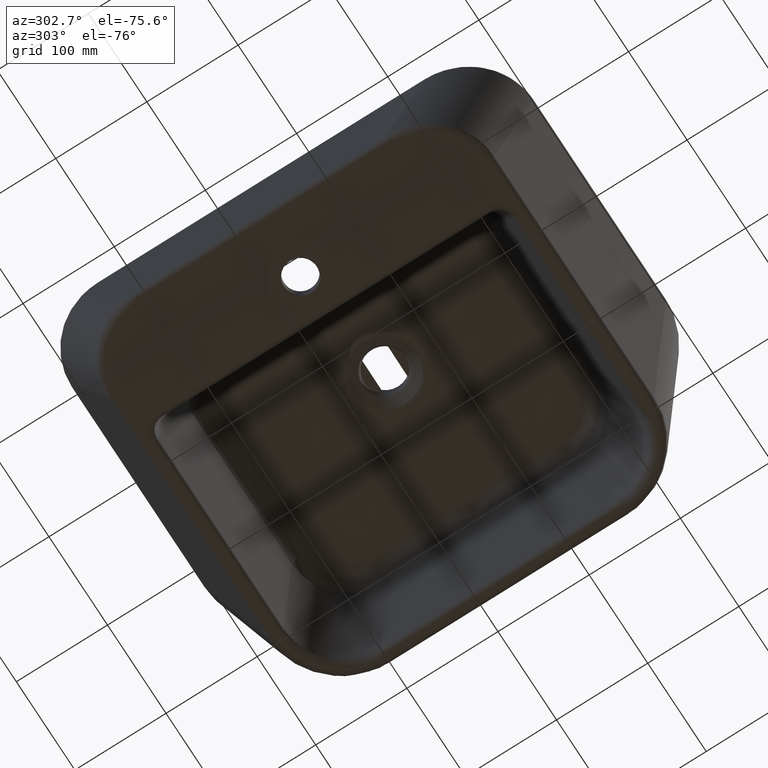
[diagram: clean part render]
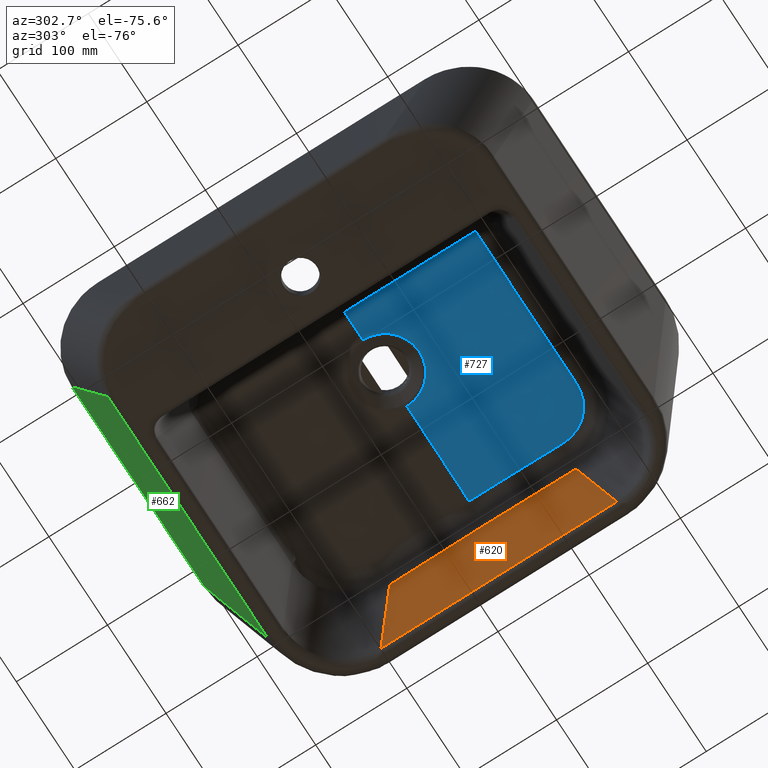
[diagram: same view with three faces highlighted in distinct colors, each labeled with its STEP entity id]
A machine part, auxiliary view with three faces highlighted in distinct colors.
Their STEP definitions:

[orange] entity #620 — the highlighted planar face has unit normal (0.9552, 0, 0.2961).
#265=PLANE('',#3220);
#480=LINE('',#4819,#556);
#481=LINE('',#4821,#557);
#482=LINE('',#4823,#558);
#556=VECTOR('',#3503,1.);
#557=VECTOR('',#3504,1.);
#558=VECTOR('',#3505,1.);
#620=ADVANCED_FACE('',(#858),#265,.F.);
#858=FACE_OUTER_BOUND('',#1069,.T.);
#1069=EDGE_LOOP('',(#1379,#1380,#1381,#1382,#1383));
#1379=ORIENTED_EDGE('',*,*,#2587,.F.);
#1380=ORIENTED_EDGE('',*,*,#2588,.F.);
#1381=ORIENTED_EDGE('',*,*,#2589,.F.);
#1382=ORIENTED_EDGE('',*,*,#2590,.T.);
#1383=ORIENTED_EDGE('',*,*,#2591,.T.);
#2312=VERTEX_POINT('',#4817);
#2313=VERTEX_POINT('',#4818);
#2314=VERTEX_POINT('',#4820);
#2315=VERTEX_POINT('',#4822);
#2316=VERTEX_POINT('',#4824);
#2587=EDGE_CURVE('',#2312,#2313,#3008,.T.);
#2588=EDGE_CURVE('',#2314,#2312,#480,.T.);
#2589=EDGE_CURVE('',#2315,#2314,#481,.T.);
#2590=EDGE_CURVE('',#2315,#2316,#482,.T.);
#2591=EDGE_CURVE('',#2316,#2313,#3009,.T.);
#3008=B_SPLINE_CURVE_WITH_KNOTS('',3,(#4813,#4814,#4815,#4816),
 .UNSPECIFIED.,.F.,.F.,(4,4),(0.,1.),.UNSPECIFIED.);
#3009=B_SPLINE_CURVE_WITH_KNOTS('',3,(#4825,#4826,#4827,#4828),
 .UNSPECIFIED.,.F.,.F.,(4,4),(0.,1.),.UNSPECIFIED.);
#3220=AXIS2_PLACEMENT_3D('',#4829,#3506,#3507);
#3503=DIRECTION('',(-0.284059022465868,-0.28204311631054,0.916385373245108));
#3504=DIRECTION('',(0.,1.,0.));
#3505=DIRECTION('',(-0.284059022465868,0.28204311631054,0.916385373245108));
#3506=DIRECTION('',(0.955163352415391,0.,0.296079330927694));
#3507=DIRECTION('',(0.296079330927694,0.,-0.955163352415391));
#4813=CARTESIAN_POINT('',(430.851902876973,-725.581756859705,177.800634459801));
#4814=CARTESIAN_POINT('',(430.636462877485,-759.632929339291,178.49565221572));
#4815=CARTESIAN_POINT('',(430.495139590663,-793.684101818876,178.951566595126));
#4816=CARTESIAN_POINT('',(430.495875615524,-827.735274298461,178.949192150509));
#4817=CARTESIAN_POINT('',(430.851902876973,-725.581756859705,177.800634459801));
#4818=CARTESIAN_POINT('',(430.495875615524,-827.735274298461,178.949192150509));
#4819=CARTESIAN_POINT('',(426.42681332988,-729.975442492293,192.076144179768));
#4820=CARTESIAN_POINT('',(458.304307010255,-698.324176569688,89.238118860859));
#4821=CARTESIAN_POINT('',(458.304307010255,-584.169226934316,89.2381188608589));
#4822=CARTESIAN_POINT('',(458.304307010255,-957.146372027235,89.238118860859));
#4823=CARTESIAN_POINT('',(426.42681332988,-925.49510610463,192.076144179768));
#4824=CARTESIAN_POINT('',(430.851902876973,-929.888791737218,177.800634459801));
#4825=CARTESIAN_POINT('',(430.851902876973,-929.888791737218,177.800634459801));
#4826=CARTESIAN_POINT('',(430.636462877485,-895.837619257632,178.49565221572));
#4827=CARTESIAN_POINT('',(430.495139590663,-861.786446778047,178.951566595126));
#4828=CARTESIAN_POINT('',(430.495875615524,-827.735274298461,178.949192150509));
#4829=CARTESIAN_POINT('',(458.640369207515,-584.169226934316,88.1539692380222));

[blue] entity #727 — the highlighted face is a freeform B-spline surface patch.
#727=ADVANCED_FACE('',(#962),#839,.T.);
#839=B_SPLINE_SURFACE_WITH_KNOTS('',3,3,((#8359,#8360,#8361,#8362),(#8363,
#8364,#8365,#8366),(#8367,#8368,#8369,#8370),(#8371,#8372,#8373,#8374),
(#8375,#8376,#8377,#8378),(#8379,#8380,#8381,#8382),(#8383,#8384,#8385,
#8386),(#8387,#8388,#8389,#8390),(#8391,#8392,#8393,#8394),(#8395,#8396,
#8397,#8398),(#8399,#8400,#8401,#8402),(#8403,#8404,#8405,#8406),(#8407,
#8408,#8409,#8410),(#8411,#8412,#8413,#8414),(#8415,#8416,#8417,#8418),
(#8419,#8420,#8421,#8422),(#8423,#8424,#8425,#8426),(#8427,#8428,#8429,
#8430),(#8431,#8432,#8433,#8434),(#8435,#8436,#8437,#8438),(#8439,#8440,
#8441,#8442),(#8443,#8444,#8445,#8446),(#8447,#8448,#8449,#8450),(#8451,
#8452,#8453,#8454),(#8455,#8456,#8457,#8458)),.UNSPECIFIED.,.F.,.F.,.F.,
(4,3,3,3,3,3,3,3,4),(4,4),(0.,0.125,0.25,0.375,0.5,0.625,0.75,0.875,1.),
(0.,1.),.UNSPECIFIED.);
#962=FACE_OUTER_BOUND('',#1179,.T.);
#1179=EDGE_LOOP('',(#1833,#1834,#1835,#1836,#1837,#1838,#1839,#1840,#1841));
#1833=ORIENTED_EDGE('',*,*,#2578,.F.);
#1834=ORIENTED_EDGE('',*,*,#2810,.T.);
#1835=ORIENTED_EDGE('',*,*,#2811,.T.);
#1836=ORIENTED_EDGE('',*,*,#2812,.T.);
#1837=ORIENTED_EDGE('',*,*,#2583,.F.);
#1838=ORIENTED_EDGE('',*,*,#2813,.T.);
#1839=ORIENTED_EDGE('',*,*,#2814,.T.);
#1840=ORIENTED_EDGE('',*,*,#2815,.T.);
#1841=ORIENTED_EDGE('',*,*,#2816,.T.);
#2303=VERTEX_POINT('',#4638);
#2304=VERTEX_POINT('',#4639);
#2308=VERTEX_POINT('',#4673);
#2309=VERTEX_POINT('',#4678);
#2424=VERTEX_POINT('',#8296);
#2425=VERTEX_POINT('',#8321);
#2426=VERTEX_POINT('',#8330);
#2427=VERTEX_POINT('',#8345);
#2428=VERTEX_POINT('',#8352);
#2578=EDGE_CURVE('',#2303,#2304,#2999,.T.);
#2583=EDGE_CURVE('',#2308,#2309,#3004,.T.);
#2810=EDGE_CURVE('',#2303,#2424,#3118,.T.);
#2811=EDGE_CURVE('',#2424,#2425,#3119,.T.);
#2812=EDGE_CURVE('',#2425,#2309,#3120,.T.);
#2813=EDGE_CURVE('',#2308,#2426,#3121,.T.);
#2814=EDGE_CURVE('',#2426,#2427,#3122,.T.);
#2815=EDGE_CURVE('',#2427,#2428,#3123,.T.);
#2816=EDGE_CURVE('',#2428,#2304,#3124,.T.);
#2999=B_SPLINE_CURVE_WITH_KNOTS('',3,(#4634,#4635,#4636,#4637),
 .UNSPECIFIED.,.F.,.F.,(4,4),(0.,1.),.UNSPECIFIED.);
#3004=B_SPLINE_CURVE_WITH_KNOTS('',3,(#4674,#4675,#4676,#4677),
 .UNSPECIFIED.,.F.,.F.,(4,4),(0.,1.),.UNSPECIFIED.);
#3118=B_SPLINE_CURVE_WITH_KNOTS('',3,(#8292,#8293,#8294,#8295),
 .UNSPECIFIED.,.F.,.F.,(4,4),(0.,1.),.UNSPECIFIED.);
#3119=B_SPLINE_CURVE_WITH_KNOTS('',3,(#8297,#8298,#8299,#8300,#8301,#8302,
#8303,#8304,#8305,#8306,#8307,#8308,#8309,#8310,#8311,#8312,#8313,#8314,
#8315,#8316,#8317,#8318,#8319,#8320),.UNSPECIFIED.,.F.,.F.,(4,2,2,2,2,2,
2,2,2,2,2,4),(0.,0.0625000000000007,0.125000000000001,0.187500000000002,
0.250000000000003,0.500000000000006,0.562500000000006,0.625000000000005,
0.687500000000005,0.750000000000005,0.875000000000003,1.),.UNSPECIFIED.);
#3120=B_SPLINE_CURVE_WITH_KNOTS('',3,(#8322,#8323,#8324,#8325),
 .UNSPECIFIED.,.F.,.F.,(4,4),(0.,1.),.UNSPECIFIED.);
#3121=B_SPLINE_CURVE_WITH_KNOTS('',3,(#8326,#8327,#8328,#8329),
 .UNSPECIFIED.,.F.,.F.,(4,4),(0.,1.),.UNSPECIFIED.);
#3122=B_SPLINE_CURVE_WITH_KNOTS('',3,(#8331,#8332,#8333,#8334,#8335,#8336,
#8337,#8338,#8339,#8340,#8341,#8342,#8343,#8344),.UNSPECIFIED.,.F.,.F.,
(4,2,2,2,2,2,4),(0.,0.125,0.250000000000001,0.375000000000001,0.500000000000002,
0.750000000000001,1.),.UNSPECIFIED.);
#3123=B_SPLINE_CURVE_WITH_KNOTS('',3,(#8346,#8347,#8348,#8349,#8350,#8351),
 .UNSPECIFIED.,.F.,.F.,(4,2,4),(0.,0.5,1.),.UNSPECIFIED.);
#3124=B_SPLINE_CURVE_WITH_KNOTS('',3,(#8353,#8354,#8355,#8356,#8357,#8358),
 .UNSPECIFIED.,.F.,.F.,(4,2,4),(0.,0.5,1.),.UNSPECIFIED.);
#4634=CARTESIAN_POINT('',(226.041877874803,-827.735274298462,200.337305618631));
#4635=CARTESIAN_POINT('',(215.41413681965,-827.735274298462,199.966187095445));
#4636=CARTESIAN_POINT('',(204.786396006995,-827.735274298462,199.595061627837));
#4637=CARTESIAN_POINT('',(194.158655207857,-827.735274298462,199.2239357732));
#4638=CARTESIAN_POINT('',(226.041877874803,-827.735274298462,200.337305618631));
#4639=CARTESIAN_POINT('',(194.158655207857,-827.735274298462,199.2239357732));
#4673=CARTESIAN_POINT('',(407.36690200374,-827.735274298461,196.625505136666));
#4674=CARTESIAN_POINT('',(407.36690200374,-827.735274298461,196.625505136666));
#4675=CARTESIAN_POINT('',(371.945320346294,-827.735274298461,197.862451670943));
#4676=CARTESIAN_POINT('',(336.523739113812,-827.735274298461,199.099410374981));
#4677=CARTESIAN_POINT('',(301.102156334521,-827.735274298461,200.336324783327));
#4678=CARTESIAN_POINT('',(301.102156334521,-827.735274298461,200.336324783327));
#8292=CARTESIAN_POINT('',(226.041877874804,-827.735274298461,200.337305618631));
#8293=CARTESIAN_POINT('',(226.041650044666,-827.856965478353,200.337329627051));
#8294=CARTESIAN_POINT('',(226.04227911696,-827.978697093769,200.337362650039));
#8295=CARTESIAN_POINT('',(226.042895212465,-828.100428099334,200.337374257637));
#8296=CARTESIAN_POINT('',(226.042470766732,-828.100430248919,200.33735943553));
#8297=CARTESIAN_POINT('',(226.042046320999,-828.100432398504,200.337344613423));
#8298=CARTESIAN_POINT('',(226.033062613686,-830.579201662076,200.336829160336));
#8299=CARTESIAN_POINT('',(226.284173105597,-833.013309322238,200.336838045508));
#8300=CARTESIAN_POINT('',(227.254504870368,-837.801143848852,200.337119498807));
#8301=CARTESIAN_POINT('',(227.985379260581,-840.179071152753,200.337391584975));
#8302=CARTESIAN_POINT('',(229.876987337393,-844.715690917391,200.337407194711));
#8303=CARTESIAN_POINT('',(231.02904912535,-846.870382367062,200.337155909276));
#8304=CARTESIAN_POINT('',(233.746574584039,-850.952040164779,200.336609326575));
#8305=CARTESIAN_POINT('',(235.325788196936,-852.885267524717,200.336318357187));
#8306=CARTESIAN_POINT('',(243.980096948562,-861.507443266061,200.336344632166));
#8307=CARTESIAN_POINT('',(253.793418215653,-865.547174600841,200.336840022416));
#8308=CARTESIAN_POINT('',(266.011486813574,-865.54385477141,200.336841962589));
#8309=CARTESIAN_POINT('',(268.494314899944,-865.292636724587,200.336986446563));
#8310=CARTESIAN_POINT('',(273.302223567399,-864.325551068947,200.337259276426));
#8311=CARTESIAN_POINT('',(275.639731548352,-863.615120016003,200.337385385241));
#8312=CARTESIAN_POINT('',(280.180038749071,-861.734280319946,200.337412618493));
#8313=CARTESIAN_POINT('',(282.376158882971,-860.564278388163,200.337160560877));
#8314=CARTESIAN_POINT('',(286.446811691892,-857.862204003796,200.336616345634));
#8315=CARTESIAN_POINT('',(288.346779122741,-856.321125034033,200.33632451068));
#8316=CARTESIAN_POINT('',(293.600286042694,-851.071156217059,200.336321606813));
#8317=CARTESIAN_POINT('',(296.327177338914,-846.925244147626,200.337436810722));
#8318=CARTESIAN_POINT('',(300.095148426733,-837.836679424687,200.337440131333));
#8319=CARTESIAN_POINT('',(301.103239985214,-832.969303126045,200.336323540409));
#8320=CARTESIAN_POINT('',(301.103239986387,-828.014087619095,200.336323540364));
#8321=CARTESIAN_POINT('',(301.103239986388,-828.014087619095,200.336323540364));
#8322=CARTESIAN_POINT('',(301.103239986388,-828.014087619095,200.336323540364));
#8323=CARTESIAN_POINT('',(301.103239986345,-827.921087247502,200.336323540365));
#8324=CARTESIAN_POINT('',(301.102877976517,-827.828149611303,200.336323960733));
#8325=CARTESIAN_POINT('',(301.102156334521,-827.735274298461,200.336324783327));
#8326=CARTESIAN_POINT('',(407.366902003739,-827.73527429846,196.625505136666));
#8327=CARTESIAN_POINT('',(407.366581079892,-861.957955091626,196.627862340507));
#8328=CARTESIAN_POINT('',(407.424527436551,-896.178133029894,196.173101263315));
#8329=CARTESIAN_POINT('',(407.56080340891,-930.396944122069,195.476945518632));
#8330=CARTESIAN_POINT('',(407.56080340891,-930.396944122069,195.476945518632));
#8331=CARTESIAN_POINT('',(407.56080340891,-930.396944122069,195.476945518632));
#8332=CARTESIAN_POINT('',(407.5717661484,-933.149681124696,195.420943173232));
#8333=CARTESIAN_POINT('',(407.333884011892,-935.862884090388,195.371356716192));
#8334=CARTESIAN_POINT('',(406.353802444929,-941.209157362363,195.28449158567));
#8335=CARTESIAN_POINT('',(405.599802024912,-943.870102311515,195.246902233288));
#8336=CARTESIAN_POINT('',(403.589772299716,-948.955042819364,195.186577431842));
#8337=CARTESIAN_POINT('',(402.345897218135,-951.366986963691,195.163831597739));
#8338=CARTESIAN_POINT('',(399.372315921384,-955.925387639492,195.133055275701));
#8339=CARTESIAN_POINT('',(397.621115584415,-958.086254654449,195.125163363355));
#8340=CARTESIAN_POINT('',(391.847246642803,-963.861568867062,195.125282104899));
#8341=CARTESIAN_POINT('',(387.153409059303,-966.914914526015,195.157079978224));
#8342=CARTESIAN_POINT('',(377.036683674462,-970.918438342072,195.277355762655));
#8343=CARTESIAN_POINT('',(371.545376322296,-971.915182882747,195.3663219487));
#8344=CARTESIAN_POINT('',(366.037876619066,-971.893468384891,195.478494065044));
#8345=CARTESIAN_POINT('',(366.037876619066,-971.893468384891,195.478494065044));
#8346=CARTESIAN_POINT('',(366.037876619066,-971.893468384892,195.478494065044));
#8347=CARTESIAN_POINT('',(337.35329664823,-971.780373281153,196.062717435926));
#8348=CARTESIAN_POINT('',(308.663828372272,-971.721920918975,196.48202124867));
#8349=CARTESIAN_POINT('',(251.288897758697,-971.690439397126,196.711446595897));
#8350=CARTESIAN_POINT('',(222.6031696802,-971.713153876001,196.508119225491));
#8351=CARTESIAN_POINT('',(193.91875161286,-971.7864741101,196.068745890272));
#8352=CARTESIAN_POINT('',(193.91875161286,-971.7864741101,196.068745890272));
#8353=CARTESIAN_POINT('',(193.91875161286,-971.786474110099,196.068745890272));
#8354=CARTESIAN_POINT('',(194.016403159651,-947.782697424297,196.824474831057));
#8355=CARTESIAN_POINT('',(194.099412883446,-923.77778360366,197.557341538328));
#8356=CARTESIAN_POINT('',(194.17720251458,-875.763449230276,198.76451204881));
#8357=CARTESIAN_POINT('',(194.158493705924,-851.753634792813,199.227341451051));
#8358=CARTESIAN_POINT('',(194.158655207857,-827.735274298462,199.2239357732));
#8359=CARTESIAN_POINT('',(226.958684018621,-827.048839703195,200.368908430172));
#8360=CARTESIAN_POINT('',(176.557170796115,-825.719383784871,198.608229856483));
#8361=CARTESIAN_POINT('',(126.155657573609,-824.389927866553,196.847551282794));
#8362=CARTESIAN_POINT('',(75.7541443511037,-823.060471948233,195.086872709105));
#8363=CARTESIAN_POINT('',(226.828874398336,-831.91933911752,200.368907763309));
#8364=CARTESIAN_POINT('',(176.248603862116,-837.297903253991,198.60822918962));
#8365=CARTESIAN_POINT('',(125.668333325904,-842.676467390468,196.847550615931));
#8366=CARTESIAN_POINT('',(75.088062789688,-848.055031526943,195.086872042242));
#8367=CARTESIAN_POINT('',(227.688252889662,-836.815604223103,200.36890892937));
#8368=CARTESIAN_POINT('',(178.291043250161,-848.935371256697,198.608230355681));
#8369=CARTESIAN_POINT('',(128.893833610663,-861.055138290289,196.847551781992));
#8370=CARTESIAN_POINT('',(79.4966239711643,-873.174905323882,195.086873208303));
#8371=CARTESIAN_POINT('',(229.462378586477,-841.353297563849,200.368908400484));
#8372=CARTESIAN_POINT('',(182.508687106969,-859.722810300867,198.608229826796));
#8373=CARTESIAN_POINT('',(135.554995627461,-878.092323037878,196.847551253106));
#8374=CARTESIAN_POINT('',(88.6013041479534,-896.461835774893,195.086872679417));
#8375=CARTESIAN_POINT('',(231.236504283291,-845.890990904596,200.368907871598));
#8376=CARTESIAN_POINT('',(186.726330963778,-870.510249345037,198.60822929791));
#8377=CARTESIAN_POINT('',(142.216157644259,-895.129507785467,196.84755072422));
#8378=CARTESIAN_POINT('',(97.7059843247425,-919.748766225903,195.086872150531));
#8379=CARTESIAN_POINT('',(233.931350067118,-850.068408487802,200.368908750315));
#8380=CARTESIAN_POINT('',(193.131238731516,-880.439019453328,198.608230176626));
#8381=CARTESIAN_POINT('',(152.331127395927,-910.809630418846,196.847551602937));
#8382=CARTESIAN_POINT('',(111.531016060332,-941.180241384368,195.086873029247));
#8383=CARTESIAN_POINT('',(237.330213671072,-853.559186041205,200.36890837809));
#8384=CARTESIAN_POINT('',(201.211436083828,-888.737704926813,198.608229804401));
#8385=CARTESIAN_POINT('',(165.092658496592,-923.916223812413,196.847551230712));
#8386=CARTESIAN_POINT('',(128.973880909352,-959.094742698017,195.086872657023));
#8387=CARTESIAN_POINT('',(240.729077275026,-857.049963594608,200.368908005865));
#8388=CARTESIAN_POINT('',(209.29163343614,-897.036390400297,198.608229432176));
#8389=CARTESIAN_POINT('',(177.854189597257,-937.02281720598,196.847550858487));
#8390=CARTESIAN_POINT('',(146.416745758373,-977.009244011666,195.086872284798));
#8391=CARTESIAN_POINT('',(244.835679864777,-859.85170047295,200.36890856012));
#8392=CARTESIAN_POINT('',(219.051814678769,-903.69538326873,198.608229986432));
#8393=CARTESIAN_POINT('',(193.267949492761,-947.539066064518,196.847551412742));
#8394=CARTESIAN_POINT('',(167.484084306752,-991.382748860302,195.086872839053));
#8395=CARTESIAN_POINT('',(249.324378238916,-861.746183570557,200.368908363932));
#8396=CARTESIAN_POINT('',(229.722995958382,-908.199213372699,198.608229790243));
#8397=CARTESIAN_POINT('',(210.121613677853,-954.652243174842,196.847551216554));
#8398=CARTESIAN_POINT('',(190.520231397321,-1001.10527297698,195.086872642865));
#8399=CARTESIAN_POINT('',(253.813076613054,-863.640666668164,200.368908167744));
#8400=CARTESIAN_POINT('',(240.394177237995,-912.703043476668,198.608229594055));
#8401=CARTESIAN_POINT('',(226.975277862945,-961.765420285166,196.847551020365));
#8402=CARTESIAN_POINT('',(213.55637848789,-1010.82779709367,195.086872446676));
#8403=CARTESIAN_POINT('',(258.685785049194,-864.626233776409,200.368908359074));
#8404=CARTESIAN_POINT('',(251.974990328603,-915.045452465011,198.608229785386));
#8405=CARTESIAN_POINT('',(245.264195608016,-965.464671153609,196.847551211696));
#8406=CARTESIAN_POINT('',(238.553400887426,-1015.88388984221,195.086872638007));
#8407=CARTESIAN_POINT('',(263.55787119549,-864.626247498671,200.368908358987));
#8408=CARTESIAN_POINT('',(263.557730989278,-915.045485084437,198.608229785299));
#8409=CARTESIAN_POINT('',(263.557590783071,-965.464722670207,196.847551211609));
#8410=CARTESIAN_POINT('',(263.557450576861,-1015.88396025598,195.08687263792));
#8411=CARTESIAN_POINT('',(268.429957341785,-864.626261220933,200.3689083589));
#8412=CARTESIAN_POINT('',(275.140471649954,-915.045517703864,198.608229785211));
#8413=CARTESIAN_POINT('',(281.850985958125,-965.464774186806,196.847551211522));
#8414=CARTESIAN_POINT('',(288.561500266295,-1015.88403066974,195.086872637833));
#8415=CARTESIAN_POINT('',(273.302671162796,-863.640720567366,200.368908167892));
#8416=CARTESIAN_POINT('',(286.721297459233,-912.703171657067,198.608229594203));
#8417=CARTESIAN_POINT('',(300.13992375567,-961.76562274677,196.847551020514));
#8418=CARTESIAN_POINT('',(313.558550052107,-1010.82807383647,195.086872446825));
#8419=CARTESIAN_POINT('',(277.791380172141,-861.746262733184,200.368908363924));
#8420=CARTESIAN_POINT('',(297.392504110205,-908.199401569167,198.608229790235));
#8421=CARTESIAN_POINT('',(316.993628048268,-954.65254040515,196.847551216546));
#8422=CARTESIAN_POINT('',(336.594751986331,-1001.10567924113,195.086872642856));
#8423=CARTESIAN_POINT('',(282.280089181486,-859.851804899003,200.368908559955));
#8424=CARTESIAN_POINT('',(308.063710761177,-903.695631481267,198.608229986266));
#8425=CARTESIAN_POINT('',(333.847332340865,-947.53945806353,196.847551412577));
#8426=CARTESIAN_POINT('',(359.630953920554,-991.383284645794,195.086872838888));
#8427=CARTESIAN_POINT('',(286.386707081508,-857.050090339191,200.36890800599));
#8428=CARTESIAN_POINT('',(317.823928255058,-897.036691784105,198.608229432302));
#8429=CARTESIAN_POINT('',(349.261149428615,-937.023293229016,196.847550858612));
#8430=CARTESIAN_POINT('',(380.698370602169,-977.009894673929,195.086872284922));
#8431=CARTESIAN_POINT('',(289.785590279797,-853.559331906962,200.368908378074));
#8432=CARTESIAN_POINT('',(325.904172251553,-888.738051695982,198.608229804386));
#8433=CARTESIAN_POINT('',(362.022754223314,-923.916771484999,196.847551230696));
#8434=CARTESIAN_POINT('',(398.141336195073,-959.095491274017,195.086872657007));
#8435=CARTESIAN_POINT('',(293.184473478085,-850.068573474732,200.368908750159));
#8436=CARTESIAN_POINT('',(333.984416248048,-880.439411607859,198.60823017647));
#8437=CARTESIAN_POINT('',(374.784359018013,-910.810249740981,196.847551602781));
#8438=CARTESIAN_POINT('',(415.584301787977,-941.181087874106,195.086873029092));
#8439=CARTESIAN_POINT('',(295.879342102862,-845.891170526404,200.368907871701));
#8440=CARTESIAN_POINT('',(340.389378226948,-870.510676446339,198.608229298011));
#8441=CARTESIAN_POINT('',(384.899414351021,-895.130182366258,196.847550724322));
#8442=CARTESIAN_POINT('',(429.4094504751,-919.749688286185,195.086872150633));
#8443=CARTESIAN_POINT('',(297.653493255812,-841.353487176377,200.368908400462));
#8444=CARTESIAN_POINT('',(344.607082629382,-859.723261065927,198.608229826773));
#8445=CARTESIAN_POINT('',(391.560672002927,-878.093034955462,196.847551253084));
#8446=CARTESIAN_POINT('',(438.514261376485,-896.462808845005,195.086872679395));
#8447=CARTESIAN_POINT('',(299.427644408763,-836.81580382635,200.368908929224));
#8448=CARTESIAN_POINT('',(348.824787031816,-848.935845685515,198.608230355535));
#8449=CARTESIAN_POINT('',(398.221929654834,-861.055887544666,196.847551781846));
#8450=CARTESIAN_POINT('',(447.619072277869,-873.175929403824,195.086873208157));
#8451=CARTESIAN_POINT('',(300.2870496947,-831.919543325244,200.36890776339));
#8452=CARTESIAN_POINT('',(350.867290096627,-837.298388800382,198.6082291897));
#8453=CARTESIAN_POINT('',(401.447530498543,-842.677234275517,196.847550616012));
#8454=CARTESIAN_POINT('',(452.027770900464,-848.056079750653,195.086872042323));
#8455=CARTESIAN_POINT('',(300.157267381757,-827.04904322263,200.368908430145));
#8456=CARTESIAN_POINT('',(350.558788073061,-825.719867606668,198.608229856455));
#8457=CARTESIAN_POINT('',(400.960308764357,-824.390691990702,196.847551282766));
#8458=CARTESIAN_POINT('',(451.361829455657,-823.061516374737,195.086872709077));

[green] entity #662 — the highlighted planar face has unit normal (-0, 0.9544, -0.2986).
#273=PLANE('',#3270);
#506=LINE('',#6378,#582);
#507=LINE('',#6381,#583);
#508=LINE('',#6383,#584);
#509=LINE('',#6385,#585);
#582=VECTOR('',#3629,1.);
#583=VECTOR('',#3630,1.);
#584=VECTOR('',#3631,1.);
#585=VECTOR('',#3632,1.);
#662=ADVANCED_FACE('',(#899),#273,.T.);
#899=FACE_OUTER_BOUND('',#1112,.T.);
#1112=EDGE_LOOP('',(#1563,#1564,#1565,#1566));
#1563=ORIENTED_EDGE('',*,*,#2709,.F.);
#1564=ORIENTED_EDGE('',*,*,#2710,.F.);
#1565=ORIENTED_EDGE('',*,*,#2711,.F.);
#1566=ORIENTED_EDGE('',*,*,#2712,.F.);
#2381=VERTEX_POINT('',#6379);
#2382=VERTEX_POINT('',#6380);
#2383=VERTEX_POINT('',#6382);
#2384=VERTEX_POINT('',#6384);
#2709=EDGE_CURVE('',#2381,#2382,#506,.T.);
#2710=EDGE_CURVE('',#2383,#2381,#507,.T.);
#2711=EDGE_CURVE('',#2384,#2383,#508,.T.);
#2712=EDGE_CURVE('',#2382,#2384,#509,.T.);
#3270=AXIS2_PLACEMENT_3D('',#6386,#3633,#3634);
#3629=DIRECTION('',(-0.306915325009861,0.284203057103863,0.90831250437661));
#3630=DIRECTION('',(1.,2.20046511983548E-017,8.1727598767674E-034));
#3631=DIRECTION('',(-0.0174526666524329,-0.298569691715208,-0.954228245031452));
#3632=DIRECTION('',(-1.,-2.20046511983548E-017,-8.1727598767674E-034));
#3633=DIRECTION('',(-2.10006582928995E-017,0.954373605088985,-0.298615173608866));
#3634=DIRECTION('',(0.,-0.298615173608866,-0.954373605088986));
#6378=CARTESIAN_POINT('',(402.66849614366,-624.173295474665,62.1411127782543));
#6379=CARTESIAN_POINT('',(393.618618641533,-615.793124649252,88.9241249917838));
#6380=CARTESIAN_POINT('',(349.287905358444,-574.742961258929,220.120379860029));
#6381=CARTESIAN_POINT('',(476.568101351746,-615.793124649252,88.9241249917838));
#6382=CARTESIAN_POINT('',(120.278768753594,-615.793124649252,88.9241249917838));
#6383=CARTESIAN_POINT('',(120.313438173798,-615.200021124811,90.8196828831335));
#6384=CARTESIAN_POINT('',(122.678325163903,-574.742961258929,220.120379860029));
#6385=CARTESIAN_POINT('',(476.568101351746,-574.742961258929,220.120379860029));
#6386=CARTESIAN_POINT('',(476.568101351746,-617.056971831685,84.8848714695903));